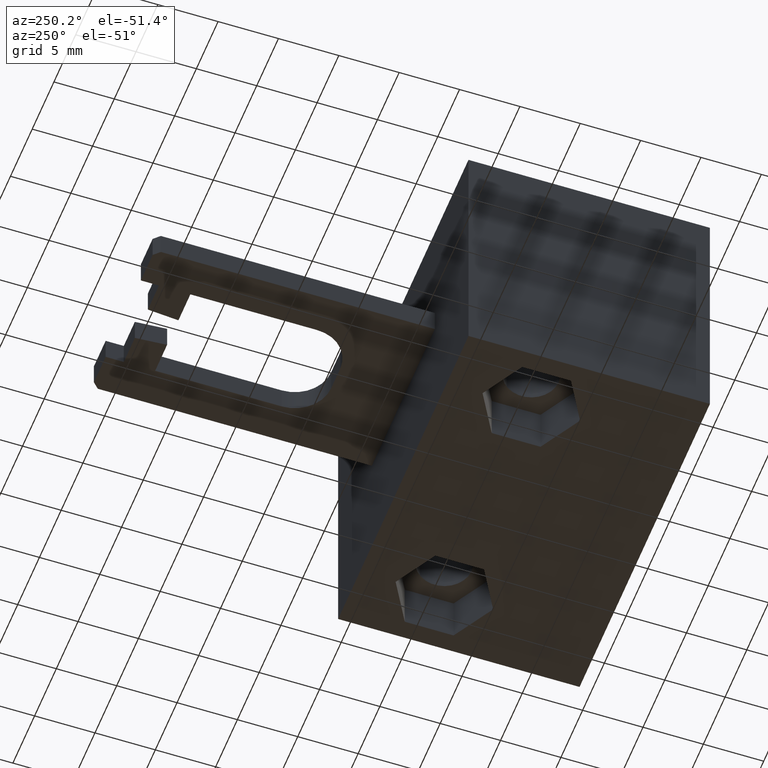
[diagram: clean part render]
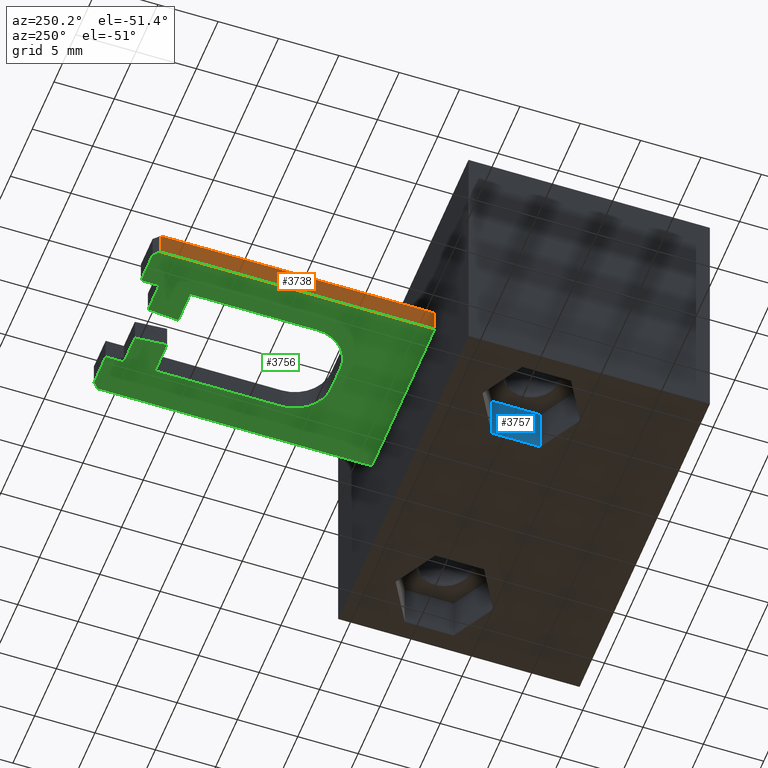
[diagram: same view with three faces highlighted in distinct colors, each labeled with its STEP entity id]
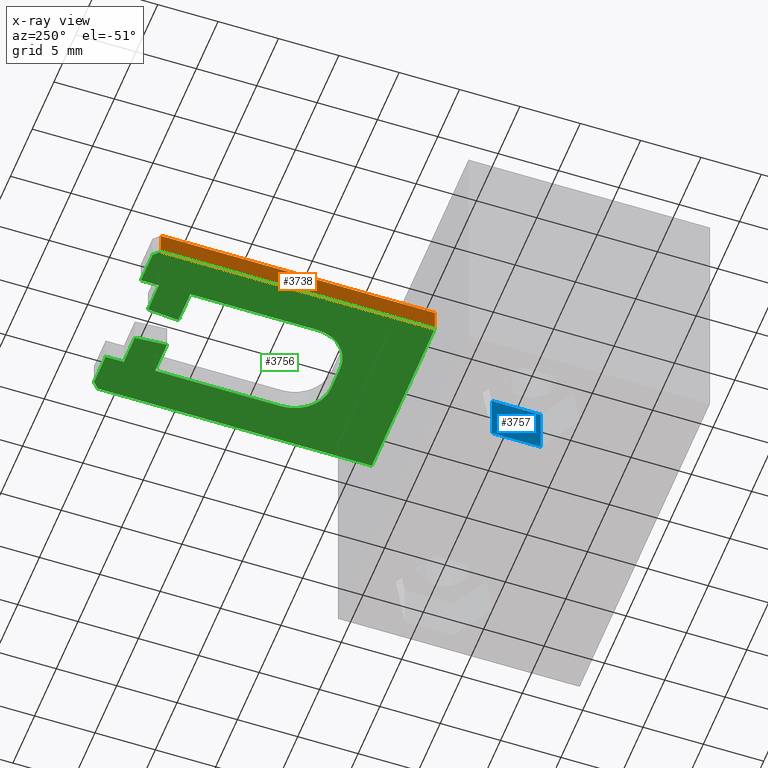
[diagram: x-ray of the same camera — body ghosted, the three highlighted faces saturated]
A machine part, auxiliary view with three faces highlighted in distinct colors.
The next image is the same camera in x-ray (body ghosted, the three faces saturated) — at least one of them is partly hidden behind the body in this view.
Their STEP definitions:

[orange] entity #3738 — the highlighted planar face has unit normal (-1, 0, 0).
#275=FACE_OUTER_BOUND('',#486,.T.);
#486=EDGE_LOOP('',(#2491,#2492,#2493,#2494));
#729=LINE('',#4847,#1142);
#730=LINE('',#4850,#1143);
#731=LINE('',#4852,#1144);
#732=LINE('',#4853,#1145);
#1142=VECTOR('',#4120,2.);
#1143=VECTOR('',#4123,22.6999986916799);
#1144=VECTOR('',#4124,22.6999986916799);
#1145=VECTOR('',#4125,2.);
#1552=VERTEX_POINT('',#4843);
#1553=VERTEX_POINT('',#4845);
#1554=VERTEX_POINT('',#4849);
#1555=VERTEX_POINT('',#4851);
#1929=EDGE_CURVE('',#1552,#1553,#729,.T.);
#1930=EDGE_CURVE('',#1554,#1552,#730,.T.);
#1931=EDGE_CURVE('',#1555,#1553,#731,.T.);
#1932=EDGE_CURVE('',#1554,#1555,#732,.T.);
#2491=ORIENTED_EDGE('',*,*,#1930,.T.);
#2492=ORIENTED_EDGE('',*,*,#1929,.T.);
#2493=ORIENTED_EDGE('',*,*,#1931,.F.);
#2494=ORIENTED_EDGE('',*,*,#1932,.F.);
#3600=PLANE('',#3952);
#3738=ADVANCED_FACE('',(#275),#3600,.T.);
#3952=AXIS2_PLACEMENT_3D('',#4848,#4121,#4122);
#4120=DIRECTION('',(0.,0.,1.));
#4121=DIRECTION('center_axis',(-1.,0.,0.));
#4122=DIRECTION('ref_axis',(0.,-1.,0.));
#4123=DIRECTION('',(0.,-1.,0.));
#4124=DIRECTION('',(0.,-1.,0.));
#4125=DIRECTION('',(0.,0.,1.));
#4843=CARTESIAN_POINT('',(1.28359142572026,0.782737006947173,0.));
#4845=CARTESIAN_POINT('',(1.28359142572026,0.782737006947172,2.));
#4847=CARTESIAN_POINT('',(1.28359142572026,0.782737006947173,0.));
#4848=CARTESIAN_POINT('Origin',(1.28359142572026,23.482735698627,0.));
#4849=CARTESIAN_POINT('',(1.28359142572026,23.482735698627,0.));
#4850=CARTESIAN_POINT('',(1.28359142572026,23.482735698627,0.));
#4851=CARTESIAN_POINT('',(1.28359142572026,23.482735698627,2.));
#4852=CARTESIAN_POINT('',(1.28359142572026,23.482735698627,2.));
#4853=CARTESIAN_POINT('',(1.28359142572026,23.482735698627,0.));

[blue] entity #3757 — the highlighted planar face has unit normal (1, 0, -0).
#294=FACE_OUTER_BOUND('',#505,.T.);
#505=EDGE_LOOP('',(#2599,#2600,#2601,#2602));
#776=LINE('',#4953,#1189);
#777=LINE('',#4955,#1190);
#778=LINE('',#4957,#1191);
#779=LINE('',#4958,#1192);
#1189=VECTOR('',#4217,4.04145196080003);
#1190=VECTOR('',#4218,4.);
#1191=VECTOR('',#4219,4.04145196080003);
#1192=VECTOR('',#4220,4.);
#1586=VERTEX_POINT('',#4951);
#1587=VERTEX_POINT('',#4952);
#1588=VERTEX_POINT('',#4954);
#1589=VERTEX_POINT('',#4956);
#1980=EDGE_CURVE('',#1586,#1587,#776,.T.);
#1981=EDGE_CURVE('',#1586,#1588,#777,.T.);
#1982=EDGE_CURVE('',#1588,#1589,#778,.T.);
#1983=EDGE_CURVE('',#1587,#1589,#779,.T.);
#2599=ORIENTED_EDGE('',*,*,#1980,.F.);
#2600=ORIENTED_EDGE('',*,*,#1981,.T.);
#2601=ORIENTED_EDGE('',*,*,#1982,.T.);
#2602=ORIENTED_EDGE('',*,*,#1983,.F.);
#3617=PLANE('',#3976);
#3757=ADVANCED_FACE('',(#294),#3617,.F.);
#3976=AXIS2_PLACEMENT_3D('',#4950,#4215,#4216);
#4215=DIRECTION('center_axis',(0.,-1.,0.));
#4216=DIRECTION('ref_axis',(1.,0.,0.));
#4217=DIRECTION('',(1.,0.,0.));
#4218=DIRECTION('',(0.,0.,1.));
#4219=DIRECTION('',(1.,0.,0.));
#4220=DIRECTION('',(0.,0.,1.));
#4950=CARTESIAN_POINT('Origin',(10.975996840756,21.5027756927222,0.));
#4951=CARTESIAN_POINT('',(10.975996840756,21.5027756927222,0.));
#4952=CARTESIAN_POINT('',(15.017448801556,21.5027756927222,0.));
#4953=CARTESIAN_POINT('',(10.487998420378,21.5027756927222,0.));
#4954=CARTESIAN_POINT('',(10.975996840756,21.5027756927222,4.));
#4955=CARTESIAN_POINT('',(10.975996840756,21.5027756927222,0.));
#4956=CARTESIAN_POINT('',(15.017448801556,21.5027756927222,4.));
#4957=CARTESIAN_POINT('',(15.017448801556,21.5027756927222,4.));
#4958=CARTESIAN_POINT('',(15.017448801556,21.5027756927222,0.));

[green] entity #3756 — the highlighted planar face has unit normal (0, 0, 1).
#260=CIRCLE('',#3961,3.00000000000001);
#262=CIRCLE('',#3965,3.00000000000001);
#293=FACE_OUTER_BOUND('',#504,.T.);
#504=EDGE_LOOP('',(#2579,#2580,#2581,#2582,#2583,#2584,#2585,#2586,#2587,
#2588,#2589,#2590,#2591,#2592,#2593,#2594,#2595,#2596,#2597,#2598));
#720=LINE('',#4830,#1133);
#724=LINE('',#4838,#1137);
#727=LINE('',#4844,#1140);
#730=LINE('',#4850,#1143);
#733=LINE('',#4856,#1146);
#736=LINE('',#4862,#1149);
#739=LINE('',#4868,#1152);
#742=LINE('',#4874,#1155);
#745=LINE('',#4880,#1158);
#748=LINE('',#4886,#1161);
#751=LINE('',#4892,#1164);
#755=LINE('',#4904,#1168);
#759=LINE('',#4916,#1172);
#762=LINE('',#4922,#1175);
#765=LINE('',#4928,#1178);
#768=LINE('',#4934,#1181);
#771=LINE('',#4940,#1184);
#774=LINE('',#4945,#1187);
#1133=VECTOR('',#4107,0.707107226367666);
#1137=VECTOR('',#4113,22.6999986916799);
#1140=VECTOR('',#4118,14.49999958278);
#1143=VECTOR('',#4123,22.6999986916799);
#1146=VECTOR('',#4128,0.707107226367666);
#1149=VECTOR('',#4133,2.70000007004001);
#1152=VECTOR('',#4138,1.49999931453999);
#1155=VECTOR('',#4143,2.5500000920199);
#1158=VECTOR('',#4148,2.60768027344619);
#1161=VECTOR('',#4153,2.75000010151985);
#1164=VECTOR('',#4158,10.50000078976);
#1168=VECTOR('',#4170,2.09999996258011);
#1172=VECTOR('',#4182,10.5000008583002);
#1175=VECTOR('',#4187,2.75000010151985);
#1178=VECTOR('',#4192,2.6076802734462);
#1181=VECTOR('',#4197,2.55000030211954);
#1184=VECTOR('',#4202,1.49999931453999);
#1187=VECTOR('',#4207,2.70000007004001);
#1546=VERTEX_POINT('',#4828);
#1547=VERTEX_POINT('',#4829);
#1550=VERTEX_POINT('',#4837);
#1552=VERTEX_POINT('',#4843);
#1554=VERTEX_POINT('',#4849);
#1556=VERTEX_POINT('',#4855);
#1558=VERTEX_POINT('',#4861);
#1560=VERTEX_POINT('',#4867);
#1562=VERTEX_POINT('',#4873);
#1564=VERTEX_POINT('',#4879);
#1566=VERTEX_POINT('',#4885);
#1568=VERTEX_POINT('',#4891);
#1570=VERTEX_POINT('',#4897);
#1572=VERTEX_POINT('',#4903);
#1574=VERTEX_POINT('',#4909);
#1576=VERTEX_POINT('',#4915);
#1578=VERTEX_POINT('',#4921);
#1580=VERTEX_POINT('',#4927);
#1582=VERTEX_POINT('',#4933);
#1584=VERTEX_POINT('',#4939);
#1920=EDGE_CURVE('',#1546,#1547,#720,.T.);
#1924=EDGE_CURVE('',#1550,#1546,#724,.T.);
#1927=EDGE_CURVE('',#1552,#1550,#727,.T.);
#1930=EDGE_CURVE('',#1554,#1552,#730,.T.);
#1933=EDGE_CURVE('',#1556,#1554,#733,.T.);
#1936=EDGE_CURVE('',#1558,#1556,#736,.T.);
#1939=EDGE_CURVE('',#1560,#1558,#739,.T.);
#1942=EDGE_CURVE('',#1562,#1560,#742,.T.);
#1945=EDGE_CURVE('',#1564,#1562,#745,.T.);
#1948=EDGE_CURVE('',#1566,#1564,#748,.T.);
#1951=EDGE_CURVE('',#1568,#1566,#751,.T.);
#1954=EDGE_CURVE('',#1570,#1568,#260,.T.);
#1957=EDGE_CURVE('',#1572,#1570,#755,.T.);
#1960=EDGE_CURVE('',#1574,#1572,#262,.T.);
#1963=EDGE_CURVE('',#1576,#1574,#759,.T.);
#1966=EDGE_CURVE('',#1578,#1576,#762,.T.);
#1969=EDGE_CURVE('',#1580,#1578,#765,.T.);
#1972=EDGE_CURVE('',#1582,#1580,#768,.T.);
#1975=EDGE_CURVE('',#1584,#1582,#771,.T.);
#1978=EDGE_CURVE('',#1547,#1584,#774,.T.);
#2579=ORIENTED_EDGE('',*,*,#1978,.F.);
#2580=ORIENTED_EDGE('',*,*,#1920,.F.);
#2581=ORIENTED_EDGE('',*,*,#1924,.F.);
#2582=ORIENTED_EDGE('',*,*,#1927,.F.);
#2583=ORIENTED_EDGE('',*,*,#1930,.F.);
#2584=ORIENTED_EDGE('',*,*,#1933,.F.);
#2585=ORIENTED_EDGE('',*,*,#1936,.F.);
#2586=ORIENTED_EDGE('',*,*,#1939,.F.);
#2587=ORIENTED_EDGE('',*,*,#1942,.F.);
#2588=ORIENTED_EDGE('',*,*,#1945,.F.);
#2589=ORIENTED_EDGE('',*,*,#1948,.F.);
#2590=ORIENTED_EDGE('',*,*,#1951,.F.);
#2591=ORIENTED_EDGE('',*,*,#1954,.F.);
#2592=ORIENTED_EDGE('',*,*,#1957,.F.);
#2593=ORIENTED_EDGE('',*,*,#1960,.F.);
#2594=ORIENTED_EDGE('',*,*,#1963,.F.);
#2595=ORIENTED_EDGE('',*,*,#1966,.F.);
#2596=ORIENTED_EDGE('',*,*,#1969,.F.);
#2597=ORIENTED_EDGE('',*,*,#1972,.F.);
#2598=ORIENTED_EDGE('',*,*,#1975,.F.);
#3616=PLANE('',#3974);
#3756=ADVANCED_FACE('',(#293),#3616,.F.);
#3961=AXIS2_PLACEMENT_3D('',#4898,#4163,#4164);
#3965=AXIS2_PLACEMENT_3D('',#4910,#4175,#4176);
#3974=AXIS2_PLACEMENT_3D('',#4948,#4211,#4212);
#4107=DIRECTION('',(-0.707105793372451,0.707107768999264,0.));
#4113=DIRECTION('',(0.,1.,0.));
#4118=DIRECTION('',(1.,0.,0.));
#4123=DIRECTION('',(0.,-1.,0.));
#4128=DIRECTION('',(-0.707105793372451,-0.707107768999264,0.));
#4133=DIRECTION('',(-1.,0.,0.));
#4138=DIRECTION('',(0.,1.,0.));
#4143=DIRECTION('',(-1.,0.,0.));
#4148=DIRECTION('',(-0.0766965227817728,0.997054483663348,0.));
#4153=DIRECTION('',(1.,0.,0.));
#4158=DIRECTION('',(0.,1.,0.));
#4163=DIRECTION('center_axis',(0.,0.,-1.));
#4164=DIRECTION('ref_axis',(1.,-2.28467337641073E-8,0.));
#4170=DIRECTION('',(-1.,0.,0.));
#4175=DIRECTION('center_axis',(0.,0.,-1.));
#4176=DIRECTION('ref_axis',(1.24733390283182E-8,1.,0.));
#4182=DIRECTION('',(0.,-1.,0.));
#4187=DIRECTION('',(1.,0.,0.));
#4192=DIRECTION('',(-0.0766965227817723,-0.997054483663348,0.));
#4197=DIRECTION('',(-1.,1.74152610680454E-15,0.));
#4202=DIRECTION('',(0.,-1.,0.));
#4207=DIRECTION('',(-1.,0.,0.));
#4211=DIRECTION('center_axis',(0.,0.,1.));
#4212=DIRECTION('ref_axis',(1.,0.,0.));
#4828=CARTESIAN_POINT('',(15.7835910085003,23.482735698627,0.));
#4829=CARTESIAN_POINT('',(15.2835913922002,23.9827367119071,0.));
#4830=CARTESIAN_POINT('',(15.7835910085003,23.482735698627,0.));
#4837=CARTESIAN_POINT('',(15.7835910085003,0.782737006947173,0.));
#4838=CARTESIAN_POINT('',(15.7835910085003,0.782737006947173,0.));
#4843=CARTESIAN_POINT('',(1.28359142572026,0.782737006947173,0.));
#4844=CARTESIAN_POINT('',(1.28359142572026,0.782737006947173,0.));
#4849=CARTESIAN_POINT('',(1.28359142572026,23.482735698627,0.));
#4850=CARTESIAN_POINT('',(1.28359142572026,23.482735698627,0.));
#4855=CARTESIAN_POINT('',(1.78359104202036,23.9827367119071,0.));
#4856=CARTESIAN_POINT('',(1.78359104202036,23.9827367119071,0.));
#4861=CARTESIAN_POINT('',(4.48359111206037,23.9827367119071,0.));
#4862=CARTESIAN_POINT('',(4.48359111206037,23.9827367119071,0.));
#4867=CARTESIAN_POINT('',(4.48359111206037,22.4827373973671,0.));
#4868=CARTESIAN_POINT('',(4.48359111206037,22.4827373973671,0.));
#4873=CARTESIAN_POINT('',(7.03359120408027,22.4827373973671,0.));
#4874=CARTESIAN_POINT('',(7.03359120408027,22.4827373973671,0.));
#4879=CARTESIAN_POINT('',(7.23359121358021,19.8827380887672,0.));
#4880=CARTESIAN_POINT('',(7.23359121358021,19.8827380887672,0.));
#4885=CARTESIAN_POINT('',(4.48359111206037,19.8827380887672,0.));
#4886=CARTESIAN_POINT('',(4.48359111206037,19.8827380887672,0.));
#4891=CARTESIAN_POINT('',(4.48359111206037,9.3827372990072,0.));
#4892=CARTESIAN_POINT('',(4.48359111206037,9.3827372990072,0.));
#4897=CARTESIAN_POINT('',(7.48359111206037,6.382737230467,0.));
#4898=CARTESIAN_POINT('Origin',(7.48359111206037,9.382737230467,0.));
#4903=CARTESIAN_POINT('',(9.58359107464049,6.382737230467,0.));
#4904=CARTESIAN_POINT('',(9.58359107464049,6.382737230467,0.));
#4909=CARTESIAN_POINT('',(12.5835911120605,9.382737230467,0.));
#4910=CARTESIAN_POINT('Origin',(9.5835911120605,9.382737230467,0.));
#4915=CARTESIAN_POINT('',(12.5835911120605,19.8827380887672,0.));
#4916=CARTESIAN_POINT('',(12.5835911120605,19.8827380887672,0.));
#4921=CARTESIAN_POINT('',(9.83359101054066,19.8827380887672,0.));
#4922=CARTESIAN_POINT('',(9.83359101054066,19.8827380887672,0.));
#4927=CARTESIAN_POINT('',(10.0335910200406,22.4827373973672,0.));
#4928=CARTESIAN_POINT('',(10.0335910200406,22.4827373973672,0.));
#4933=CARTESIAN_POINT('',(12.5835913221601,22.4827373973671,0.));
#4934=CARTESIAN_POINT('',(12.5835913221601,22.4827373973671,0.));
#4939=CARTESIAN_POINT('',(12.5835913221601,23.9827367119071,0.));
#4940=CARTESIAN_POINT('',(12.5835913221601,23.9827367119071,0.));
#4945=CARTESIAN_POINT('',(15.2835913922002,23.9827367119071,0.));
#4948=CARTESIAN_POINT('Origin',(8.53359118322789,12.9902725854367,0.));